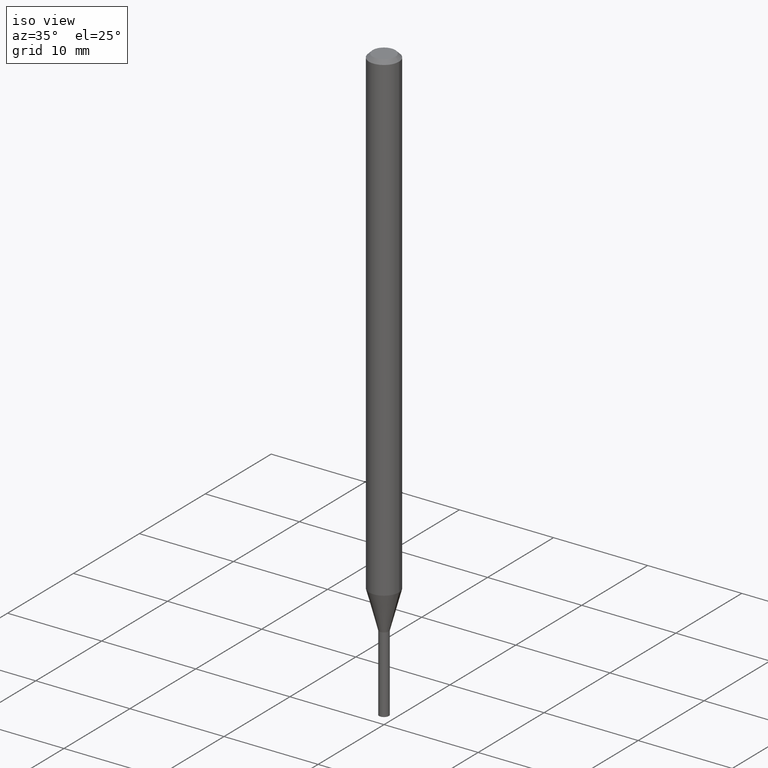
[diagram: clean part render]
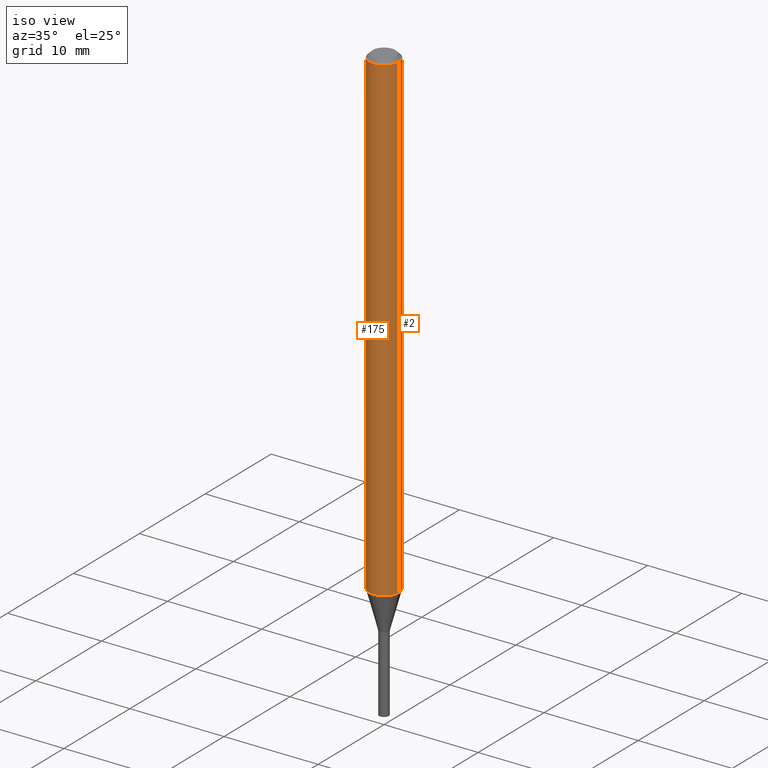
[diagram: same view with one multi-face feature highlighted, each face labeled with its STEP entity id]
A machine part, iso view. The highlighted faces form ONE feature: a constant-radius fillet chain: 2 tangent blend faces with common blend radius 1.5875 mm. The faces share edges in the B-rep.
Their STEP definitions:
[1] entity #2 (Cylinder):
#2 = ADVANCED_FACE ( 'NONE', ( #203 ), #120, .T. ) ;
#15 = DIRECTION ( 'NONE',  ( -2.445468806185136597E-29, 3.491481338843145583E-15, 1.000000000000000000 ) ) ;
#58 = CARTESIAN_POINT ( 'NONE',  ( 0.06249999999999999306, -7.494073091648195633E-15, -2.021387840678321890 ) ) ;
#76 = EDGE_LOOP ( 'NONE', ( #410, #437, #440, #376 ) ) ;
#98 = CARTESIAN_POINT ( 'NONE',  ( 0.06250000000000000000, -4.888073874380388472E-16, -0.01499999999999999944 ) ) ;
#107 = CARTESIAN_POINT ( 'NONE',  ( 3.668203209277705088E-31, -5.237222008264718399E-17, -0.01499999999999999944 ) ) ;
#120 = CYLINDRICAL_SURFACE ( 'NONE', #284, 0.06250000000000000000 ) ;
#125 = CARTESIAN_POINT ( 'NONE',  ( 0.000000000000000000, 0.000000000000000000, 0.000000000000000000 ) ) ;
#126 = VERTEX_POINT ( 'NONE', #313 ) ;
#137 = DIRECTION ( 'NONE',  ( -2.445468806185136877E-29, 3.491481338843145188E-15, 1.000000000000000000 ) ) ;
#147 = DIRECTION ( 'NONE',  ( 1.000000000000000000, -6.982962677686262766E-15, 0.000000000000000000 ) ) ;
#149 = AXIS2_PLACEMENT_3D ( 'NONE', #188, #252, #147 ) ;
#152 = VERTEX_POINT ( 'NONE', #58 ) ;
#154 = VERTEX_POINT ( 'NONE', #98 ) ;
#158 = CIRCLE ( 'NONE', #215, 0.06250000000000000000 ) ;
#186 = CARTESIAN_POINT ( 'NONE',  ( -0.06249999999999999306, -6.613548714442740559E-15, -2.021387840678321890 ) ) ;
#188 = CARTESIAN_POINT ( 'NONE',  ( 4.943240909580767453E-29, -7.057637924292802386E-15, -2.021387840678321890 ) ) ;
#203 = FACE_OUTER_BOUND ( 'NONE', #76, .T. ) ;
#210 = DIRECTION ( 'NONE',  ( 1.000000000000000000, -6.982962677686266711E-15, 0.000000000000000000 ) ) ;
#215 = AXIS2_PLACEMENT_3D ( 'NONE', #107, #357, #210 ) ;
#249 = EDGE_CURVE ( 'NONE', #154, #126, #158, .T. ) ;
#252 = DIRECTION ( 'NONE',  ( -2.445468806185136597E-29, 3.491481338843145583E-15, 1.000000000000000000 ) ) ;
#253 = VECTOR ( 'NONE', #137, 39.37007874015748143 ) ;
#275 = EDGE_CURVE ( 'NONE', #152, #154, #463, .T. ) ;
#284 = AXIS2_PLACEMENT_3D ( 'NONE', #125, #15, #419 ) ;
#293 = DIRECTION ( 'NONE',  ( -2.445468806185136877E-29, 3.491481338843145188E-15, 1.000000000000000000 ) ) ;
#299 = CARTESIAN_POINT ( 'NONE',  ( -0.06250000000000000000, 4.440892098500626162E-16, -3.074334431409316114E-30 ) ) ;
#313 = CARTESIAN_POINT ( 'NONE',  ( -0.06250000000000000000, -3.110915862337662708E-15, -0.01499999999999999944 ) ) ;
#330 = LINE ( 'NONE', #299, #400 ) ;
#354 = EDGE_CURVE ( 'NONE', #152, #453, #375, .T. ) ;
#357 = DIRECTION ( 'NONE',  ( -2.445468806185136597E-29, 3.491481338843145583E-15, 1.000000000000000000 ) ) ;
#375 = CIRCLE ( 'NONE', #149, 0.06250000000000000000 ) ;
#376 = ORIENTED_EDGE ( 'NONE', *, *, #275, .F. ) ;
#392 = EDGE_CURVE ( 'NONE', #453, #126, #330, .T. ) ;
#393 = CARTESIAN_POINT ( 'NONE',  ( 0.06250000000000000000, -4.364351673553916694E-16, 3.047610484872459871E-30 ) ) ;
#400 = VECTOR ( 'NONE', #293, 39.37007874015748143 ) ;
#410 = ORIENTED_EDGE ( 'NONE', *, *, #354, .T. ) ;
#419 = DIRECTION ( 'NONE',  ( 1.000000000000000000, -6.982962677686266711E-15, 4.876176775795935793E-29 ) ) ;
#437 = ORIENTED_EDGE ( 'NONE', *, *, #392, .T. ) ;
#440 = ORIENTED_EDGE ( 'NONE', *, *, #249, .F. ) ;
#453 = VERTEX_POINT ( 'NONE', #186 ) ;
#463 = LINE ( 'NONE', #393, #253 ) ;
[2] entity #175 (Cylinder):
#3 = AXIS2_PLACEMENT_3D ( 'NONE', #351, #27, #356 ) ;
#11 = AXIS2_PLACEMENT_3D ( 'NONE', #242, #55, #233 ) ;
#21 = CARTESIAN_POINT ( 'NONE',  ( 4.943240909580767453E-29, -7.057637924292802386E-15, -2.021387840678321890 ) ) ;
#25 = ORIENTED_EDGE ( 'NONE', *, *, #275, .T. ) ;
#27 = DIRECTION ( 'NONE',  ( -2.445468806185136597E-29, 3.491481338843145583E-15, 1.000000000000000000 ) ) ;
#48 = EDGE_LOOP ( 'NONE', ( #53, #236, #25, #189 ) ) ;
#53 = ORIENTED_EDGE ( 'NONE', *, *, #392, .F. ) ;
#55 = DIRECTION ( 'NONE',  ( -2.445468806185136597E-29, 3.491481338843145583E-15, 1.000000000000000000 ) ) ;
#58 = CARTESIAN_POINT ( 'NONE',  ( 0.06249999999999999306, -7.494073091648195633E-15, -2.021387840678321890 ) ) ;
#65 = FACE_OUTER_BOUND ( 'NONE', #48, .T. ) ;
#98 = CARTESIAN_POINT ( 'NONE',  ( 0.06250000000000000000, -4.888073874380388472E-16, -0.01499999999999999944 ) ) ;
#115 = EDGE_CURVE ( 'NONE', #126, #154, #353, .T. ) ;
#126 = VERTEX_POINT ( 'NONE', #313 ) ;
#137 = DIRECTION ( 'NONE',  ( -2.445468806185136877E-29, 3.491481338843145188E-15, 1.000000000000000000 ) ) ;
#152 = VERTEX_POINT ( 'NONE', #58 ) ;
#154 = VERTEX_POINT ( 'NONE', #98 ) ;
#161 = DIRECTION ( 'NONE',  ( -2.445468806185136597E-29, 3.491481338843145583E-15, 1.000000000000000000 ) ) ;
#162 = EDGE_CURVE ( 'NONE', #453, #152, #222, .T. ) ;
#175 = ADVANCED_FACE ( 'NONE', ( #65 ), #204, .T. ) ;
#184 = AXIS2_PLACEMENT_3D ( 'NONE', #21, #161, #455 ) ;
#186 = CARTESIAN_POINT ( 'NONE',  ( -0.06249999999999999306, -6.613548714442740559E-15, -2.021387840678321890 ) ) ;
#189 = ORIENTED_EDGE ( 'NONE', *, *, #115, .F. ) ;
#204 = CYLINDRICAL_SURFACE ( 'NONE', #3, 0.06250000000000000000 ) ;
#222 = CIRCLE ( 'NONE', #184, 0.06250000000000000000 ) ;
#233 = DIRECTION ( 'NONE',  ( 1.000000000000000000, -6.982962677686266711E-15, 0.000000000000000000 ) ) ;
#236 = ORIENTED_EDGE ( 'NONE', *, *, #162, .T. ) ;
#242 = CARTESIAN_POINT ( 'NONE',  ( 3.668203209277705088E-31, -5.237222008264718399E-17, -0.01499999999999999944 ) ) ;
#253 = VECTOR ( 'NONE', #137, 39.37007874015748143 ) ;
#275 = EDGE_CURVE ( 'NONE', #152, #154, #463, .T. ) ;
#293 = DIRECTION ( 'NONE',  ( -2.445468806185136877E-29, 3.491481338843145188E-15, 1.000000000000000000 ) ) ;
#299 = CARTESIAN_POINT ( 'NONE',  ( -0.06250000000000000000, 4.440892098500626162E-16, -3.074334431409316114E-30 ) ) ;
#313 = CARTESIAN_POINT ( 'NONE',  ( -0.06250000000000000000, -3.110915862337662708E-15, -0.01499999999999999944 ) ) ;
#330 = LINE ( 'NONE', #299, #400 ) ;
#351 = CARTESIAN_POINT ( 'NONE',  ( 0.000000000000000000, 0.000000000000000000, 0.000000000000000000 ) ) ;
#353 = CIRCLE ( 'NONE', #11, 0.06250000000000000000 ) ;
#356 = DIRECTION ( 'NONE',  ( 1.000000000000000000, -6.982962677686266711E-15, 4.876176775795935793E-29 ) ) ;
#392 = EDGE_CURVE ( 'NONE', #453, #126, #330, .T. ) ;
#393 = CARTESIAN_POINT ( 'NONE',  ( 0.06250000000000000000, -4.364351673553916694E-16, 3.047610484872459871E-30 ) ) ;
#400 = VECTOR ( 'NONE', #293, 39.37007874015748143 ) ;
#453 = VERTEX_POINT ( 'NONE', #186 ) ;
#455 = DIRECTION ( 'NONE',  ( 1.000000000000000000, -6.982962677686262766E-15, 0.000000000000000000 ) ) ;
#463 = LINE ( 'NONE', #393, #253 ) ;